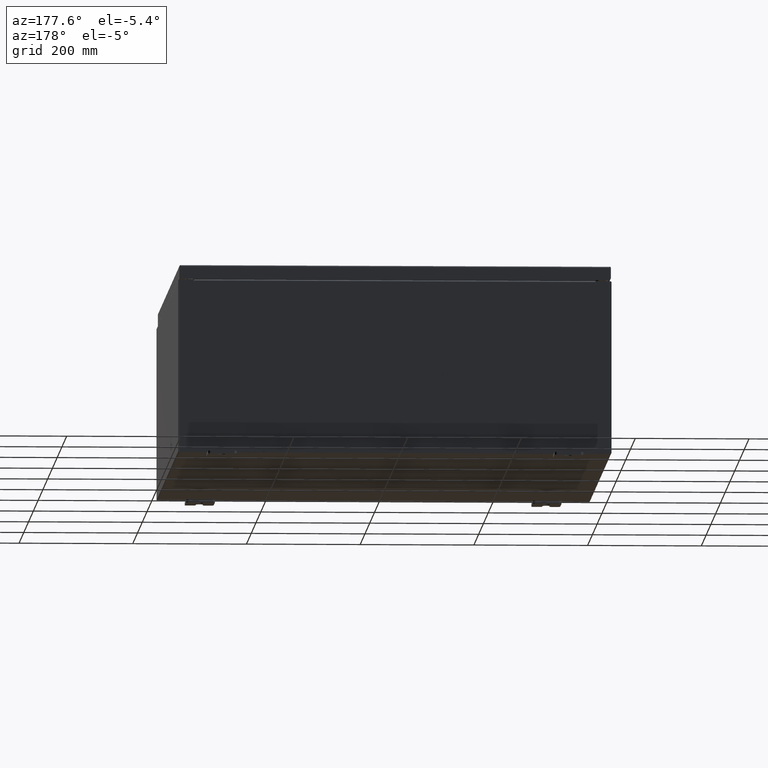
[diagram: clean part render]
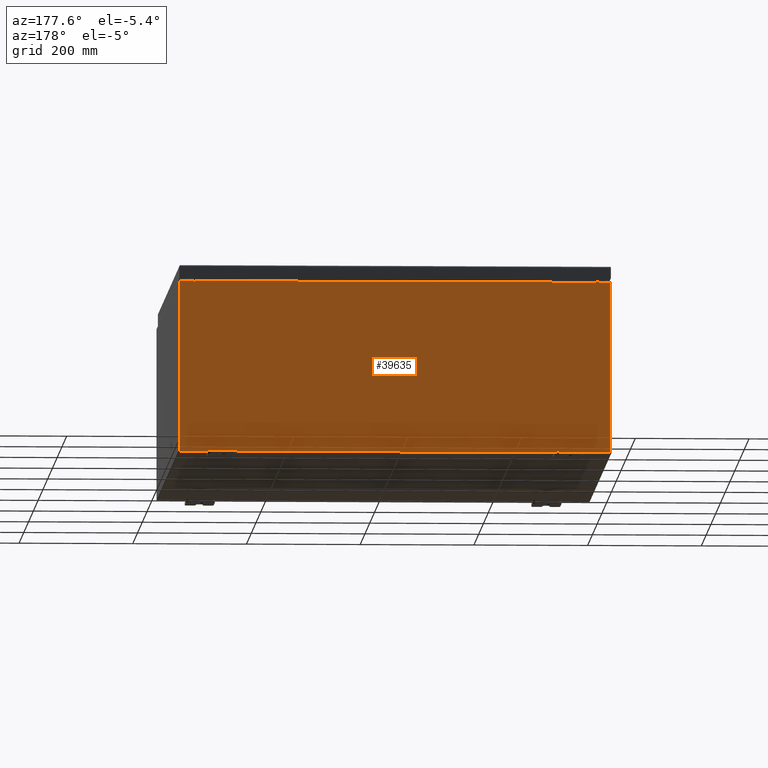
[diagram: same view with one face highlighted and labeled with its STEP entity id]
A machine part, auxiliary view. The second image highlights one B-rep face of the part: STEP entity #39635.
In plain terms, the highlighted planar face has unit normal (0, -1, 0).
Its self-contained STEP definition (entity closure, byte-faithful):
#887 = VERTEX_POINT ( 'NONE', #23699 ) ;
#913 = EDGE_CURVE ( 'NONE', #50428, #12518, #33242, .T. ) ;
#974 = LINE ( 'NONE', #6188, #14453 ) ;
#1196 = CARTESIAN_POINT ( 'NONE',  ( -14.92529999999999800, 0.0000000000000000000, 5.925299999999999100 ) ) ;
#1299 = EDGE_CURVE ( 'NONE', #46034, #21374, #49076, .T. ) ;
#2759 = CARTESIAN_POINT ( 'NONE',  ( -14.92529999999999800, 0.0000000000000000000, 5.925299999999999100 ) ) ;
#3226 = CARTESIAN_POINT ( 'NONE',  ( -13.92455000000000000, -0.0000000000000000000, 0.0000000000000000000 ) ) ;
#3358 = DIRECTION ( 'NONE',  ( 0.0000000000000000000, 0.0000000000000000000, 1.000000000000000000 ) ) ;
#3698 = CIRCLE ( 'NONE', #37596, 0.01867499999999949400 ) ;
#4248 = EDGE_CURVE ( 'NONE', #12518, #55003, #35376, .T. ) ;
#4594 = VECTOR ( 'NONE', #10048, 39.37007874015748100 ) ;
#4742 = CARTESIAN_POINT ( 'NONE',  ( -13.88720000000000200, 3.756290991288361700E-016, 5.912299999999999200 ) ) ;
#5689 = VERTEX_POINT ( 'NONE', #39555 ) ;
#6188 = CARTESIAN_POINT ( 'NONE',  ( -13.88720000000000200, -0.0000000000000000000, 0.0000000000000000000 ) ) ;
#7016 = EDGE_CURVE ( 'NONE', #18319, #35330, #974, .T. ) ;
#7897 = LINE ( 'NONE', #3226, #35003 ) ;
#9335 = ORIENTED_EDGE ( 'NONE', *, *, #45751, .T. ) ;
#9772 = EDGE_CURVE ( 'NONE', #5689, #58508, #7897, .T. ) ;
#9973 = CARTESIAN_POINT ( 'NONE',  ( 13.88720000000000500, 0.0000000000000000000, 0.0000000000000000000 ) ) ;
#10048 = DIRECTION ( 'NONE',  ( 0.0000000000000000000, 0.0000000000000000000, 1.000000000000000000 ) ) ;
#10193 = LINE ( 'NONE', #20776, #47583 ) ;
#10616 = LINE ( 'NONE', #1196, #22529 ) ;
#10810 = DIRECTION ( 'NONE',  ( 1.000000000000000000, 0.0000000000000000000, 0.0000000000000000000 ) ) ;
#11802 = EDGE_CURVE ( 'NONE', #13145, #65199, #45190, .T. ) ;
#12518 = VERTEX_POINT ( 'NONE', #47597 ) ;
#12734 = AXIS2_PLACEMENT_3D ( 'NONE', #27230, #62866, #32408 ) ;
#13145 = VERTEX_POINT ( 'NONE', #13219 ) ;
#13144 = CARTESIAN_POINT ( 'NONE',  ( 13.92455000000000500, 0.0000000000000000000, 5.874949999999999200 ) ) ;
#13219 = CARTESIAN_POINT ( 'NONE',  ( 13.88720000000000500, 0.0000000000000000000, 5.874949999999999200 ) ) ;
#14019 = ORIENTED_EDGE ( 'NONE', *, *, #4248, .T. ) ;
#14200 = DIRECTION ( 'NONE',  ( 0.0000000000000000000, 0.0000000000000000000, -1.000000000000000000 ) ) ;
#14453 = VECTOR ( 'NONE', #14200, 39.37007874015748100 ) ;
#15434 = EDGE_LOOP ( 'NONE', ( #44618, #46526, #43387, #29410, #61503, #44562, #25893, #25033, #9335, #56588, #14019, #16567 ) ) ;
#16567 = ORIENTED_EDGE ( 'NONE', *, *, #22603, .T. ) ;
#18319 = VERTEX_POINT ( 'NONE', #4742 ) ;
#20776 = CARTESIAN_POINT ( 'NONE',  ( 14.92530000000000200, 0.0000000000000000000, 5.925299999999999100 ) ) ;
#21323 = FACE_OUTER_BOUND ( 'NONE', #15434, .T. ) ;
#21374 = VERTEX_POINT ( 'NONE', #13144 ) ;
#21738 = VECTOR ( 'NONE', #46968, 39.37007874015748100 ) ;
#22282 = CARTESIAN_POINT ( 'NONE',  ( 13.92455000000000700, 0.0000000000000000000, 5.925299999999999100 ) ) ;
#22529 = VECTOR ( 'NONE', #10810, 39.37007874015748100 ) ;
#22591 = CARTESIAN_POINT ( 'NONE',  ( 0.0000000000000000000, 0.0000000000000000000, 0.0000000000000000000 ) ) ;
#22603 = EDGE_CURVE ( 'NONE', #55003, #58508, #10616, .T. ) ;
#22613 = DIRECTION ( 'NONE',  ( -4.340572780400004900E-014, 0.0000000000000000000, -1.000000000000000000 ) ) ;
#22704 = AXIS2_PLACEMENT_3D ( 'NONE', #22591, #58228, #27725 ) ;
#23699 = CARTESIAN_POINT ( 'NONE',  ( 14.92530000000000200, 0.0000000000000000000, 5.925299999999999100 ) ) ;
#25033 = ORIENTED_EDGE ( 'NONE', *, *, #41004, .T. ) ;
#25831 = CIRCLE ( 'NONE', #12734, 0.01867499999999949400 ) ;
#25874 = DIRECTION ( 'NONE',  ( 0.0000000000000000000, 0.0000000000000000000, -1.000000000000000000 ) ) ;
#25893 = ORIENTED_EDGE ( 'NONE', *, *, #1299, .F. ) ;
#27230 = CARTESIAN_POINT ( 'NONE',  ( -13.90587500000000200, 0.0000000000000000000, 5.874949999999999200 ) ) ;
#27499 = PLANE ( 'NONE',  #22704 ) ;
#27725 = DIRECTION ( 'NONE',  ( 0.0000000000000000000, -0.0000000000000000000, -1.000000000000000000 ) ) ;
#28696 = CARTESIAN_POINT ( 'NONE',  ( 13.90587500000000500, 0.0000000000000000000, 5.874949999999999200 ) ) ;
#29410 = ORIENTED_EDGE ( 'NONE', *, *, #64522, .T. ) ;
#30291 = CARTESIAN_POINT ( 'NONE',  ( -13.88720000000000200, -0.0000000000000000000, 5.874949999999999200 ) ) ;
#32408 = DIRECTION ( 'NONE',  ( 0.0000000000000000000, 0.0000000000000000000, -1.000000000000000000 ) ) ;
#33242 = LINE ( 'NONE', #38933, #45165 ) ;
#33891 = DIRECTION ( 'NONE',  ( 0.0000000000000000000, 0.0000000000000000000, -1.000000000000000000 ) ) ;
#35003 = VECTOR ( 'NONE', #3358, 39.37007874015748100 ) ;
#35330 = VERTEX_POINT ( 'NONE', #30291 ) ;
#35376 = LINE ( 'NONE', #57453, #21738 ) ;
#35613 = VECTOR ( 'NONE', #22613, 39.37007874015748100 ) ;
#37596 = AXIS2_PLACEMENT_3D ( 'NONE', #28696, #64341, #33891 ) ;
#37707 = LINE ( 'NONE', #52215, #64745 ) ;
#38933 = CARTESIAN_POINT ( 'NONE',  ( -14.92529999999999800, 0.0000000000000000000, -5.925300000000001800 ) ) ;
#39555 = CARTESIAN_POINT ( 'NONE',  ( -13.92455000000000000, 0.0000000000000000000, 5.874949999999999200 ) ) ;
#39635 = ADVANCED_FACE ( 'NONE', ( #21323 ), #27499, .F. ) ;
#41004 = EDGE_CURVE ( 'NONE', #46034, #887, #49091, .T. ) ;
#42286 = DIRECTION ( 'NONE',  ( 1.000000000000000000, 0.0000000000000000000, 0.0000000000000000000 ) ) ;
#42736 = CARTESIAN_POINT ( 'NONE',  ( 13.92454999999975000, -0.0000000000000000000, -6.044052270931779300E-013 ) ) ;
#43387 = ORIENTED_EDGE ( 'NONE', *, *, #7016, .F. ) ;
#44562 = ORIENTED_EDGE ( 'NONE', *, *, #49417, .F. ) ;
#44618 = ORIENTED_EDGE ( 'NONE', *, *, #9772, .F. ) ;
#45165 = VECTOR ( 'NONE', #64262, 39.37007874015748100 ) ;
#45190 = LINE ( 'NONE', #9973, #4594 ) ;
#45751 = EDGE_CURVE ( 'NONE', #887, #50428, #10193, .T. ) ;
#46034 = VERTEX_POINT ( 'NONE', #22282 ) ;
#46526 = ORIENTED_EDGE ( 'NONE', *, *, #62701, .F. ) ;
#46968 = DIRECTION ( 'NONE',  ( -0.0000000000000000000, -0.0000000000000000000, 1.000000000000000000 ) ) ;
#47583 = VECTOR ( 'NONE', #25874, 39.37007874015748100 ) ;
#47597 = CARTESIAN_POINT ( 'NONE',  ( -14.92529999999999800, 0.0000000000000000000, -5.925300000000001800 ) ) ;
#48242 = CARTESIAN_POINT ( 'NONE',  ( -13.92455000000000000, 0.0000000000000000000, 5.925299999999999100 ) ) ;
#49076 = LINE ( 'NONE', #42736, #35613 ) ;
#49091 = LINE ( 'NONE', #63453, #50706 ) ;
#49147 = CARTESIAN_POINT ( 'NONE',  ( 14.92530000000000200, 0.0000000000000000000, -5.925300000000001800 ) ) ;
#49417 = EDGE_CURVE ( 'NONE', #21374, #13145, #3698, .T. ) ;
#50428 = VERTEX_POINT ( 'NONE', #49147 ) ;
#50706 = VECTOR ( 'NONE', #54076, 39.37007874015748100 ) ;
#52215 = CARTESIAN_POINT ( 'NONE',  ( -13.88720000000000200, 3.756290991288361700E-016, 5.912299999999999200 ) ) ;
#54076 = DIRECTION ( 'NONE',  ( 1.000000000000000000, 0.0000000000000000000, 0.0000000000000000000 ) ) ;
#55003 = VERTEX_POINT ( 'NONE', #2759 ) ;
#56588 = ORIENTED_EDGE ( 'NONE', *, *, #913, .T. ) ;
#57453 = CARTESIAN_POINT ( 'NONE',  ( -14.92529999999999800, 0.0000000000000000000, 5.925299999999999100 ) ) ;
#57921 = CARTESIAN_POINT ( 'NONE',  ( 13.88720000000000500, 0.0000000000000000000, 5.912299999999999200 ) ) ;
#58228 = DIRECTION ( 'NONE',  ( 0.0000000000000000000, -1.000000000000000000, 0.0000000000000000000 ) ) ;
#58508 = VERTEX_POINT ( 'NONE', #48242 ) ;
#61503 = ORIENTED_EDGE ( 'NONE', *, *, #11802, .F. ) ;
#62701 = EDGE_CURVE ( 'NONE', #35330, #5689, #25831, .T. ) ;
#62866 = DIRECTION ( 'NONE',  ( -0.0000000000000000000, 1.000000000000000000, -0.0000000000000000000 ) ) ;
#63453 = CARTESIAN_POINT ( 'NONE',  ( -14.92529999999999800, 0.0000000000000000000, 5.925299999999999100 ) ) ;
#64262 = DIRECTION ( 'NONE',  ( -1.000000000000000000, -0.0000000000000000000, -0.0000000000000000000 ) ) ;
#64341 = DIRECTION ( 'NONE',  ( -0.0000000000000000000, 1.000000000000000000, -0.0000000000000000000 ) ) ;
#64522 = EDGE_CURVE ( 'NONE', #18319, #65199, #37707, .T. ) ;
#64745 = VECTOR ( 'NONE', #42286, 39.37007874015748100 ) ;
#65199 = VERTEX_POINT ( 'NONE', #57921 ) ;